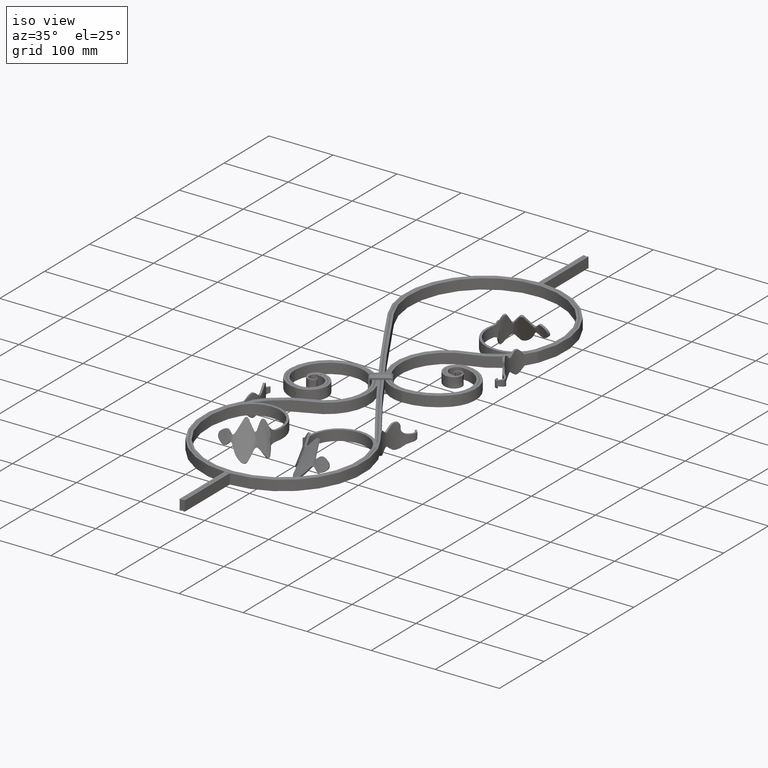
[diagram: clean part render]
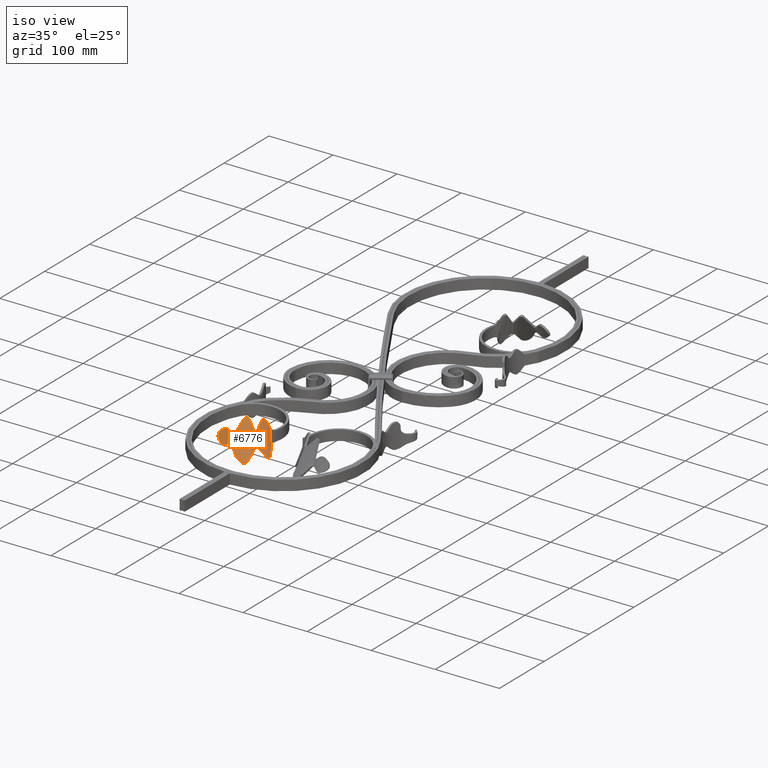
[diagram: same view with one face highlighted and labeled with its STEP entity id]
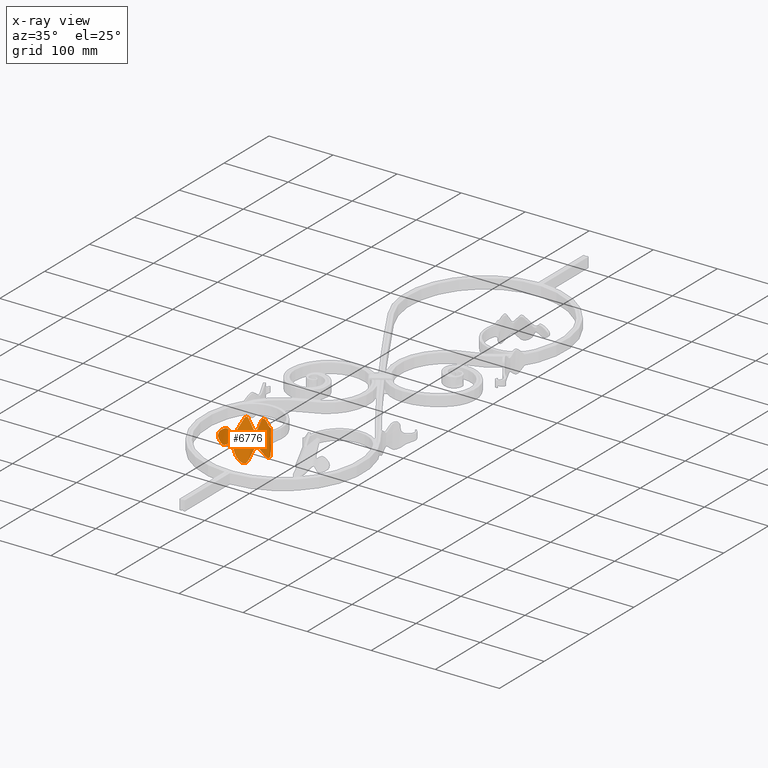
[diagram: x-ray of the same camera — body ghosted, the highlighted face saturated]
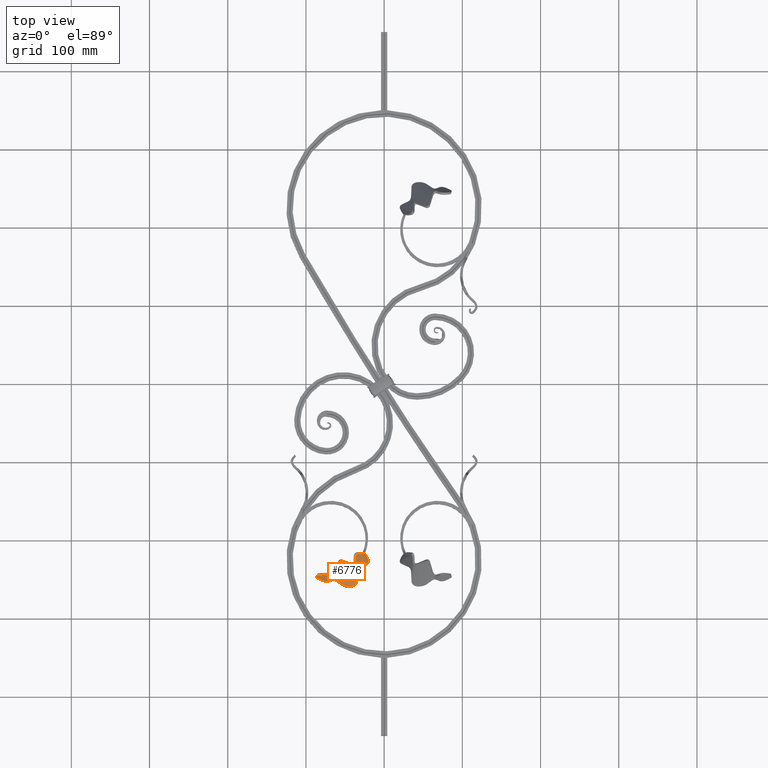
[diagram: same view with one face highlighted and labeled with its STEP entity id]
A machine part, iso view. The second image highlights one B-rep face of the part: STEP entity #6776.
The next image is the same camera in x-ray: the body ghosted, the highlighted face saturated — about 0% of this face is hidden behind the body in this view.
A second angle (top view) of the same face is appended — the face is thin or edge-on in the first view.
In plain terms, the highlighted face is a freeform B-spline surface patch.
Its self-contained STEP definition (entity closure, byte-faithful):
#78 = CARTESIAN_POINT ( 'NONE',  ( -31.70719285318793368, -215.0983763876049011, 26.22190851606310957 ) ) ;
#226 = VERTEX_POINT ( 'NONE', #8088 ) ;
#414 = CARTESIAN_POINT ( 'NONE',  ( -73.63405529800409965, -239.9980409116379860, 23.44558443169835371 ) ) ;
#418 = CARTESIAN_POINT ( 'NONE',  ( -55.49942883577791264, -259.1300241852245563, -16.82412671734019582 ) ) ;
#519 = CARTESIAN_POINT ( 'NONE',  ( -16.19230652051385633, -230.7987754669394178, -33.36520945733495580 ) ) ;
#769 = CARTESIAN_POINT ( 'NONE',  ( -40.27070720235761314, -231.8570342741394086, 4.458380182484407150 ) ) ;
#935 = CARTESIAN_POINT ( 'NONE',  ( -26.82610194027254735, -218.0839697591759148, 6.120196970770777511 ) ) ;
#974 = VERTEX_POINT ( 'NONE', #4609 ) ;
#1028 = CARTESIAN_POINT ( 'NONE',  ( -62.80383985795849355, -247.1715449112271585, 0.5707683171801293254 ) ) ;
#1647 = B_SPLINE_CURVE_WITH_KNOTS ( 'NONE', 3,
 ( #17542, #7767, #9753, #17289, #11478, #13447, #23406, #1698, #3658, #19176, #7422, #19662, #10093, #12065 ),
 .UNSPECIFIED., .F., .F.,
 ( 4, 2, 2, 2, 2, 2, 4 ),
 ( 7.152448122690996019E-18, 0.001340536488547645292, 0.002010804732821464252, 0.002681072977095283211, 0.003351341221369102171, 0.004021609465642921565, 0.005362145954190553412 ),
 .UNSPECIFIED. ) ;
#1698 = CARTESIAN_POINT ( 'NONE',  ( -27.45580850525448113, -216.6145653137118359, 14.09804083391916940 ) ) ;
#1910 = CARTESIAN_POINT ( 'NONE',  ( -83.71537529404966449, -244.9293315853853414, 5.160881433700161836 ) ) ;
#2043 = CARTESIAN_POINT ( 'NONE',  ( -63.06846676040483857, -248.9220805546081010, -0.5702339803316490707 ) ) ;
#2061 = ORIENTED_EDGE ( 'NONE', *, *, #14287, .F. ) ;
#2113 = CARTESIAN_POINT ( 'NONE',  ( -56.22038085678877906, -221.7615966360299353, 32.16677762089288706 ) ) ;
#2291 = CARTESIAN_POINT ( 'NONE',  ( -24.86369256807507355, -217.0408718552029654, 8.000000000000000000 ) ) ;
#2383 = CARTESIAN_POINT ( 'NONE',  ( -54.51407750647761929, -265.2694307641325508, -25.41894186991523341 ) ) ;
#2461 = CARTESIAN_POINT ( 'NONE',  ( -29.59699701182409726, -259.3112436813754584, -32.16589865442728069 ) ) ;
#2486 = VERTEX_POINT ( 'NONE', #19819 ) ;
#2514 = B_SPLINE_SURFACE_WITH_KNOTS ( 'NONE', 3, 3, ( 
 ( #6590, #24045, #18082, #16194, #22242, #2383, #20286, #16264, #12268, #4520 ),
 ( #22067, #10452, #10533, #18261, #21998, #4677, #24203, #22320, #8395, #6504 ),
 ( #16113, #23950, #12528, #769, #14482, #12193, #6341, #4344, #20038, #8308 ),
 ( #12360, #10300, #519, #14242, #2461, #4438, #1028, #4846, #24387, #18838 ),
 ( #14576, #8898, #2800, #20801, #14927, #4772, #10971, #6845, #5020, #9082 ),
 ( #6757, #935, #20463, #8726, #22405, #12685, #16788, #18598, #20531, #12601 ),
 ( #7100, #8816, #7019, #24544, #24631, #24463, #22488, #10790, #12858, #3151 ),
 ( #16870, #12778, #19092, #9691, #4163, #23583, #21807, #15833, #13968, #11996 ),
 ( #15910, #78, #19767, #8036, #10185, #23840, #17738, #7949, #21721, #15737 ),
 ( #9848, #19929, #12172, #20018, #14133, #8284, #23510, #414, #10108, #5969 ) ),
 .UNSPECIFIED., .F., .F., .F.,
 ( 4, 3, 3, 4 ),
 ( 4, 1, 1, 1, 1, 1, 1, 4 ),
 ( -0.2554340199973100245, 0.000000000000000000, 1.000000000000000000, 1.319260244043976238 ),
 ( 0.000000000000000000, 0.1555450868424311239, 0.3171069245021586047, 0.5135773434917300095, 0.6410318024686509908, 0.7888780637861357858, 0.8531032969698880697, 1.000000000000000000 ),
 .UNSPECIFIED. ) ;
#2531 = CARTESIAN_POINT ( 'NONE',  ( -18.02914424635629942, -230.9209306751669999, -30.46621451763531141 ) ) ;
#2800 = CARTESIAN_POINT ( 'NONE',  ( -23.83798526999437328, -226.0664216859851763, -11.11728648388969987 ) ) ;
#2884 = CARTESIAN_POINT ( 'NONE',  ( -22.30700188055484290, -220.3700991353471750, -14.92270707561661602 ) ) ;
#2978 = CARTESIAN_POINT ( 'NONE',  ( -24.22520478817327216, -217.6903872976182868, -12.25722961142075462 ) ) ;
#3151 = CARTESIAN_POINT ( 'NONE',  ( -86.08579796155625274, -245.1186472696008991, 3.288924172750681052 ) ) ;
#3218 = LINE ( 'NONE', #2291, #18252 ) ;
#3242 = CARTESIAN_POINT ( 'NONE',  ( -85.35948116762969562, -248.0026026872737646, -4.069819391450387513 ) ) ;
#3403 = CARTESIAN_POINT ( 'NONE',  ( -86.31581581018708960, -247.0121106981796117, -1.954105702200817252 ) ) ;
#3658 = CARTESIAN_POINT ( 'NONE',  ( -27.62301038721107105, -216.6165808582597379, 14.25219202550009001 ) ) ;
#3800 = LINE ( 'NONE', #12375, #23679 ) ;
#4003 = CARTESIAN_POINT ( 'NONE',  ( -28.96031277660755165, -216.6558966036715788, 16.04433143409746876 ) ) ;
#4118 = ORIENTED_EDGE ( 'NONE', *, *, #22007, .F. ) ;
#4163 = CARTESIAN_POINT ( 'NONE',  ( -59.05364353132873845, -217.7655601428758416, 39.01306626344650397 ) ) ;
#4344 = CARTESIAN_POINT ( 'NONE',  ( -73.67706904697962500, -255.4985419003751304, -16.74664961704536736 ) ) ;
#4438 = CARTESIAN_POINT ( 'NONE',  ( -55.49942883577791264, -259.1300241852245563, -16.82412671734019582 ) ) ;
#4520 = CARTESIAN_POINT ( 'NONE',  ( -86.99410267250453899, -247.9838054272812258, -4.969130418574744468 ) ) ;
#4609 = CARTESIAN_POINT ( 'NONE',  ( -28.96031277660755165, -216.6558966036715788, 16.04433143409746876 ) ) ;
#4677 = CARTESIAN_POINT ( 'NONE',  ( -54.84252794957771471, -263.2229619044965716, -22.55400348572355540 ) ) ;
#4772 = CARTESIAN_POINT ( 'NONE',  ( -56.78528121794516181, -251.1182923898373929, -5.608164238176891914 ) ) ;
#4840 = CARTESIAN_POINT ( 'NONE',  ( -22.45713150412785808, -220.1258723438197933, -14.54110083507380757 ) ) ;
#4846 = CARTESIAN_POINT ( 'NONE',  ( -73.67446125804353585, -254.5587950532616901, -14.30992029757382156 ) ) ;
#4966 = CARTESIAN_POINT ( 'NONE',  ( -86.25202142335294297, -245.8086255149748638, 1.330931660128964911 ) ) ;
#5020 = CARTESIAN_POINT ( 'NONE',  ( -81.66810063448458834, -248.1507491947870392, -2.333048367399839229 ) ) ;
#5103 = CARTESIAN_POINT ( 'NONE',  ( -86.08879510550646330, -247.3381256897638423, -2.702385480939154760 ) ) ;
#5228 = CARTESIAN_POINT ( 'NONE',  ( -85.03605826670823831, -245.1506349547015873, 3.815442737059309586 ) ) ;
#5319 = CARTESIAN_POINT ( 'NONE',  ( -84.89149609003689534, -245.1128697859034276, 4.000663062668393444 ) ) ;
#5910 = VERTEX_POINT ( 'NONE', #21361 ) ;
#5969 = CARTESIAN_POINT ( 'NONE',  ( -85.85481363337608229, -244.3900298527751431, 5.388969640819710527 ) ) ;
#5999 = EDGE_CURVE ( 'NONE', #9450, #974, #15965, .T. ) ;
#6297 = VERTEX_POINT ( 'NONE', #15477 ) ;
#6341 = CARTESIAN_POINT ( 'NONE',  ( -62.78130828679471875, -247.0224961257147243, 0.6679185850733289076 ) ) ;
#6504 = CARTESIAN_POINT ( 'NONE',  ( -86.93250062359705055, -247.7894878036581474, -4.409061669966722441 ) ) ;
#6576 = CARTESIAN_POINT ( 'NONE',  ( -23.09691630974042553, -219.1308035967650483, -13.35945638097156696 ) ) ;
#6590 = CARTESIAN_POINT ( 'NONE',  ( -24.86369256807507355, -217.0408718552029939, -12.08694431995696306 ) ) ;
#6749 = CARTESIAN_POINT ( 'NONE',  ( -22.99340594787186376, -219.2848648733912285, -13.51498011721907666 ) ) ;
#6757 = CARTESIAN_POINT ( 'NONE',  ( -24.86369256807507355, -217.0408718552029939, 2.666666666666666963 ) ) ;
#6776 = ADVANCED_FACE ( 'NONE', ( #20192 ), #2514, .T. ) ;
#6812 = VERTEX_POINT ( 'NONE', #22127 ) ;
#6845 = CARTESIAN_POINT ( 'NONE',  ( -73.66425201130296330, -250.8797751360111761, -4.770355757591208778 ) ) ;
#7019 = CARTESIAN_POINT ( 'NONE',  ( -39.12934276895542496, -216.6017141240764374, 33.37855946300080490 ) ) ;
#7100 = CARTESIAN_POINT ( 'NONE',  ( -24.86369256807507355, -217.0408718552029939, 8.000000000000001776 ) ) ;
#7338 = CARTESIAN_POINT ( 'NONE',  ( -85.77027580256199712, -247.6680080879617663, -3.407219290587698346 ) ) ;
#7422 = CARTESIAN_POINT ( 'NONE',  ( -28.08295851748869865, -216.6311059750503318, 14.74583334851818606 ) ) ;
#7767 = CARTESIAN_POINT ( 'NONE',  ( -25.29163761276585376, -216.9036168622703258, 13.01496439878056322 ) ) ;
#7835 = ORIENTED_EDGE ( 'NONE', *, *, #25125, .T. ) ;
#7949 = CARTESIAN_POINT ( 'NONE',  ( -73.63731470461000583, -241.1726057082620400, 20.39998072859024347 ) ) ;
#8036 = CARTESIAN_POINT ( 'NONE',  ( -32.27978599277778926, -239.6037680954293023, -5.436413893085900284 ) ) ;
#8088 = CARTESIAN_POINT ( 'NONE',  ( -86.43227486822999595, -246.2115747020345680, 0.1388522030059437251 ) ) ;
#8284 = CARTESIAN_POINT ( 'NONE',  ( -60.58855061828528221, -227.4213464544322392, 27.56619347500699035 ) ) ;
#8308 = CARTESIAN_POINT ( 'NONE',  ( -86.87089857468954790, -247.5951701800350406, -3.848992921358700414 ) ) ;
#8395 = CARTESIAN_POINT ( 'NONE',  ( -81.97434957190272087, -250.6854990446162788, -9.392081826804627553 ) ) ;
#8461 = CARTESIAN_POINT ( 'NONE',  ( -39.74652205232399638, -232.3652013207015727, 3.809305566301667945 ) ) ;
#8590 = B_SPLINE_CURVE_WITH_KNOTS ( 'NONE', 3,
 ( #16338, #2884, #4840, #24191, #18585, #6749, #6576, #10693, #20614, #2978, #20451, #12592 ),
 .UNSPECIFIED., .F., .F.,
 ( 4, 2, 2, 2, 2, 4 ),
 ( 1.097135458930219133E-17, 0.001428510768075019841, 0.002142766152112545591, 0.002857021536150071775, 0.004285532304225069498, 0.005714043072300068089 ),
 .UNSPECIFIED. ) ;
#8726 = CARTESIAN_POINT ( 'NONE',  ( -35.64225160284249938, -236.3440530536660162, -1.272825750345777163 ) ) ;
#8816 = CARTESIAN_POINT ( 'NONE',  ( -29.80506433250439713, -216.2618421792791139, 18.38840581614794445 ) ) ;
#8898 = CARTESIAN_POINT ( 'NONE',  ( -23.84713954804069758, -219.9060973390726872, -6.148011874606392979 ) ) ;
#9082 = CARTESIAN_POINT ( 'NONE',  ( -86.56813033770679056, -246.6401174608082556, -1.096308057583558648 ) ) ;
#9277 = CARTESIAN_POINT ( 'NONE',  ( -86.35076319606729101, -245.9544541238539637, 0.8799337260193563770 ) ) ;
#9328 = CARTESIAN_POINT ( 'NONE',  ( -84.08743910320809789, -248.7602203723032801, -5.367876984888791725 ) ) ;
#9450 = VERTEX_POINT ( 'NONE', #1910 ) ;
#9691 = CARTESIAN_POINT ( 'NONE',  ( -32.93495118543976474, -238.9686235077887773, -4.625152650877700999 ) ) ;
#9753 = CARTESIAN_POINT ( 'NONE',  ( -25.71443979839179406, -216.7955439894616632, 13.11359491987594694 ) ) ;
#9848 = CARTESIAN_POINT ( 'NONE',  ( -24.86369256807507355, -217.0408718552029939, 13.10816390470362336 ) ) ;
#10093 = CARTESIAN_POINT ( 'NONE',  ( -28.74162393052026943, -216.6585954804654079, 15.64920224239592450 ) ) ;
#10108 = CARTESIAN_POINT ( 'NONE',  ( -81.06856633873331930, -243.1885459658236925, 11.48620824602116386 ) ) ;
#10124 = CARTESIAN_POINT ( 'NONE',  ( -72.94459957085719282, -243.8788013790196771, 13.32498644842095814 ) ) ;
#10185 = CARTESIAN_POINT ( 'NONE',  ( -61.88690620586870494, -213.7695236497217763, 45.85935490600012088 ) ) ;
#10300 = CARTESIAN_POINT ( 'NONE',  ( -20.86817715580884780, -221.7282249189694880, -18.41622071998356347 ) ) ;
#10452 = CARTESIAN_POINT ( 'NONE',  ( -19.34632047727167503, -222.6590916643314984, -24.68365652706605573 ) ) ;
#10533 = CARTESIAN_POINT ( 'NONE',  ( -12.28637360333823025, -233.2163837675766160, -44.73096226073021597 ) ) ;
#10559 = EDGE_LOOP ( 'NONE', ( #24907, #7835, #2061, #24650, #4118, #19126, #16488, #18291 ) ) ;
#10693 = CARTESIAN_POINT ( 'NONE',  ( -23.42573819275884262, -218.6627598651877520, -12.92621396886414331 ) ) ;
#10790 = CARTESIAN_POINT ( 'NONE',  ( -73.64383351782181819, -243.5217353015101764, 14.30877332237401944 ) ) ;
#10961 = CARTESIAN_POINT ( 'NONE',  ( -86.49104249825062141, -246.3969514291742655, -0.3954467949664965398 ) ) ;
#10971 = CARTESIAN_POINT ( 'NONE',  ( -62.89204882544062514, -247.7550567923541678, 0.1904342180095381365 ) ) ;
#11086 = CARTESIAN_POINT ( 'NONE',  ( -83.71537529404966449, -244.9293315853853414, 5.160881433700161836 ) ) ;
#11127 = CARTESIAN_POINT ( 'NONE',  ( -86.37006962902746920, -246.9049601592152783, -1.696295393975089105 ) ) ;
#11478 = CARTESIAN_POINT ( 'NONE',  ( -26.53785144572620425, -216.6636754067172888, 13.46194170935428147 ) ) ;
#11675 = CARTESIAN_POINT ( 'NONE',  ( -59.35698598227958200, -235.0948287990628387, 16.82376072014973545 ) ) ;
#11996 = CARTESIAN_POINT ( 'NONE',  ( -86.00880318549619119, -244.8757747973256471, 3.988939328773690729 ) ) ;
#12065 = CARTESIAN_POINT ( 'NONE',  ( -28.96031277660755165, -216.6558966036715788, 16.04433143409746876 ) ) ;
#12172 = CARTESIAN_POINT ( 'NONE',  ( -46.45222655927841515, -212.0691568550467139, 54.68719141692195507 ) ) ;
#12174 = CARTESIAN_POINT ( 'NONE',  ( -22.16573235699161160, -220.5850585180250505, -15.32971714365298155 ) ) ;
#12193 = CARTESIAN_POINT ( 'NONE',  ( -55.17097839267781723, -261.1764930448605924, -19.68906510153187384 ) ) ;
#12268 = CARTESIAN_POINT ( 'NONE',  ( -82.02612536908279139, -251.1140350429234616, -10.58551318288633070 ) ) ;
#12360 = CARTESIAN_POINT ( 'NONE',  ( -24.86369256807507355, -217.0408718552029939, -8.000000000000001776 ) ) ;
#12375 = CARTESIAN_POINT ( 'NONE',  ( -86.80929652578204525, -247.4008525564119623, -3.288924172750678387 ) ) ;
#12510 = CARTESIAN_POINT ( 'NONE',  ( -84.08743910320809789, -248.7602203723032801, -5.367876984888791725 ) ) ;
#12528 = CARTESIAN_POINT ( 'NONE',  ( -14.23934006192604329, -232.0075796172580169, -39.04808585903258233 ) ) ;
#12592 = CARTESIAN_POINT ( 'NONE',  ( -24.86369256807507355, -217.0408718552029654, -11.93756620795300272 ) ) ;
#12601 = CARTESIAN_POINT ( 'NONE',  ( -86.32696414963152165, -245.8793823652045774, 1.096308057583561313 ) ) ;
#12685 = CARTESIAN_POINT ( 'NONE',  ( -58.07113360011238257, -243.1065605944500589, 5.607798240986415550 ) ) ;
#12778 = CARTESIAN_POINT ( 'NONE',  ( -30.75612859284616363, -215.6801092834419933, 22.30515716610552701 ) ) ;
#12858 = CARTESIAN_POINT ( 'NONE',  ( -81.26270594836859118, -244.7953934883573481, 7.011293127082929288 ) ) ;
#13447 = CARTESIAN_POINT ( 'NONE',  ( -26.92311362414639575, -216.6297055631538910, 13.68933406725935775 ) ) ;
#13646 = CARTESIAN_POINT ( 'NONE',  ( -32.17601127168398989, -216.6162111135371333, 21.85448759820419795 ) ) ;
#13824 = VERTEX_POINT ( 'NONE', #23799 ) ;
#13968 = CARTESIAN_POINT ( 'NONE',  ( -81.19799274515683862, -244.2597776475128057, 8.502931500062340220 ) ) ;
#14133 = CARTESIAN_POINT ( 'NONE',  ( -64.72016888040866434, -209.7734871565676826, 52.70564354855373068 ) ) ;
#14197 = B_SPLINE_CURVE_WITH_KNOTS ( 'NONE', 3,
 ( #20713, #10961, #15161, #11127, #3403, #19081, #5103, #24788, #7338, #16858, #3242, #16777, #21059, #9328 ),
 .UNSPECIFIED., .F., .F.,
 ( 4, 2, 2, 2, 2, 2, 4 ),
 ( 0.000000000000000000, 0.001681573103156911624, 0.002522359654735364509, 0.003363146206313817176, 0.004203932757892270278, 0.005044719309470722945, 0.006726292412627574505 ),
 .UNSPECIFIED. ) ;
#14242 = CARTESIAN_POINT ( 'NONE',  ( -39.74652205232399638, -232.3652013207015727, 3.809305566301667945 ) ) ;
#14287 = EDGE_CURVE ( 'NONE', #6297, #5910, #23550, .T. ) ;
#14307 = CARTESIAN_POINT ( 'NONE',  ( -72.87652045741991458, -254.0165456200603842, -13.21762684441439539 ) ) ;
#14482 = CARTESIAN_POINT ( 'NONE',  ( -27.33015769134051354, -262.5083961127997441, -37.64348336049081922 ) ) ;
#14576 = CARTESIAN_POINT ( 'NONE',  ( -24.86369256807507355, -217.0408718552029939, -2.666666666666666963 ) ) ;
#14927 = CARTESIAN_POINT ( 'NONE',  ( -38.47145829347896040, -246.7946946662603125, -10.72167322932055811 ) ) ;
#15034 = CARTESIAN_POINT ( 'NONE',  ( -85.30752509539966866, -245.2350960032183025, 3.430383336202944999 ) ) ;
#15161 = CARTESIAN_POINT ( 'NONE',  ( -86.48190155262531675, -246.5936691026636254, -0.9208824222913567503 ) ) ;
#15477 = CARTESIAN_POINT ( 'NONE',  ( -22.16573235699161160, -220.5850585180250505, -15.32971714365298155 ) ) ;
#15737 = CARTESIAN_POINT ( 'NONE',  ( -85.93180840943612964, -244.6329023250503951, 4.688954484796700406 ) ) ;
#15757 = CARTESIAN_POINT ( 'NONE',  ( -33.59011637810174022, -238.3334789201482522, -3.813891408669500382 ) ) ;
#15833 = CARTESIAN_POINT ( 'NONE',  ( -73.64057411121591201, -242.3471705048860940, 17.35437702548212968 ) ) ;
#15879 = CARTESIAN_POINT ( 'NONE',  ( -79.56733759377345905, -244.5652593624797930, 8.449252729842594789 ) ) ;
#15910 = CARTESIAN_POINT ( 'NONE',  ( -24.86369256807507355, -217.0408718552029939, 11.40544260313575009 ) ) ;
#15965 = B_SPLINE_CURVE_WITH_KNOTS ( 'NONE', 3,
 ( #20152, #15879, #10124, #2043, #11675, #2113, #15757, #21662, #13646, #4003 ),
 .UNSPECIFIED., .F., .F.,
 ( 4, 1, 1, 1, 1, 1, 1, 4 ),
 ( 0.02373466144033113331, 0.1468967030301119303, 0.2111219362138642142, 0.3589681975313490092, 0.4864226565082699905, 0.6828930754978413953, 0.8444549131575689316, 0.9553958864027051190 ),
 .UNSPECIFIED. ) ;
#16113 = CARTESIAN_POINT ( 'NONE',  ( -24.86369256807507355, -217.0408718552029939, -9.362314773318988870 ) ) ;
#16194 = CARTESIAN_POINT ( 'NONE',  ( -41.31907750242483957, -230.8407001810150518, 5.756529414849886450 ) ) ;
#16264 = CARTESIAN_POINT ( 'NONE',  ( -73.68228462485178909, -257.3780355946020109, -21.62010825598846608 ) ) ;
#16338 = CARTESIAN_POINT ( 'NONE',  ( -22.16573235699161160, -220.5850585180250505, -15.32971714365298155 ) ) ;
#16421 = CARTESIAN_POINT ( 'NONE',  ( -79.85296170251891112, -250.8678326033459314, -8.578465055430816832 ) ) ;
#16488 = ORIENTED_EDGE ( 'NONE', *, *, #5999, .F. ) ;
#16777 = CARTESIAN_POINT ( 'NONE',  ( -84.87884376131471242, -248.3347101617919748, -4.683973953364574783 ) ) ;
#16788 = CARTESIAN_POINT ( 'NONE',  ( -62.98025779292271409, -248.3385686734811202, -0.1898998811610534132 ) ) ;
#16821 = CARTESIAN_POINT ( 'NONE',  ( -85.77915567567239918, -245.4325619367511138, 2.622632599741602899 ) ) ;
#16858 = CARTESIAN_POINT ( 'NONE',  ( -85.50728930326243926, -247.8901707141074553, -3.853015976596027681 ) ) ;
#16867 = EDGE_CURVE ( 'NONE', #13824, #974, #1647, .T. ) ;
#16870 = CARTESIAN_POINT ( 'NONE',  ( -24.86369256807507355, -217.0408718552029939, 9.702721301567875045 ) ) ;
#16992 = CARTESIAN_POINT ( 'NONE',  ( -84.09148574704012447, -244.9623427049972406, 4.862718565578059149 ) ) ;
#17289 = CARTESIAN_POINT ( 'NONE',  ( -26.33354048313668372, -216.6896007918511486, 13.36166624920005042 ) ) ;
#17542 = CARTESIAN_POINT ( 'NONE',  ( -24.86369256807507355, -217.0408718552029654, 12.95878579269970032 ) ) ;
#17738 = CARTESIAN_POINT ( 'NONE',  ( -63.12478999337525920, -249.2946648457504466, -0.8130850949705439312 ) ) ;
#18082 = CARTESIAN_POINT ( 'NONE',  ( -10.33340714475041544, -234.4251879178952152, -50.41383866242784251 ) ) ;
#18252 = VECTOR ( 'NONE', #23778, 1000.000000000000000 ) ;
#18261 = CARTESIAN_POINT ( 'NONE',  ( -40.79489235239122991, -231.3488672275772160, 5.107454798667147244 ) ) ;
#18291 = ORIENTED_EDGE ( 'NONE', *, *, #18399, .T. ) ;
#18399 = EDGE_CURVE ( 'NONE', #9450, #2486, #23789, .T. ) ;
#18585 = CARTESIAN_POINT ( 'NONE',  ( -22.80080862981600376, -219.5796579904734358, -13.84007444151527721 ) ) ;
#18598 = CARTESIAN_POINT ( 'NONE',  ( -73.65404276456241917, -247.2007552187606905, 4.769208782391405776 ) ) ;
#18838 = CARTESIAN_POINT ( 'NONE',  ( -86.80929652578204525, -247.4008525564119623, -3.288924172750678387 ) ) ;
#18963 = CARTESIAN_POINT ( 'NONE',  ( -86.40049176167713085, -246.1113180085276895, 0.4278153954586477181 ) ) ;
#19081 = CARTESIAN_POINT ( 'NONE',  ( -86.17485432306652626, -247.2290329745873123, -2.457881868193714237 ) ) ;
#19092 = CARTESIAN_POINT ( 'NONE',  ( -41.57030403239642169, -215.0908617010665296, 40.48143678097452636 ) ) ;
#19126 = ORIENTED_EDGE ( 'NONE', *, *, #16867, .T. ) ;
#19176 = CARTESIAN_POINT ( 'NONE',  ( -27.93648561172438249, -216.6248936768199655, 14.57619812329249243 ) ) ;
#19662 = CARTESIAN_POINT ( 'NONE',  ( -28.49762611308733895, -216.6486904321060933, 15.27327180148457231 ) ) ;
#19767 = CARTESIAN_POINT ( 'NONE',  ( -44.01126529583741842, -213.5800092780566217, 47.58431409894824071 ) ) ;
#19819 = CARTESIAN_POINT ( 'NONE',  ( -86.40049176167713085, -246.1113180085276895, 0.4278153954586477181 ) ) ;
#19929 = CARTESIAN_POINT ( 'NONE',  ( -32.65825711352970018, -214.5166434917678089, 30.13865986602069569 ) ) ;
#20018 = CARTESIAN_POINT ( 'NONE',  ( -31.62462080011581378, -240.2389126830698274, -6.247675135294099569 ) ) ;
#20038 = CARTESIAN_POINT ( 'NONE',  ( -81.92257377472265034, -250.2569630463091244, -8.198650470722926187 ) ) ;
#20152 = CARTESIAN_POINT ( 'NONE',  ( -83.71537529404966449, -244.9293315853853414, 5.160881433700161836 ) ) ;
#20187 = CARTESIAN_POINT ( 'NONE',  ( -19.99363485482995628, -223.8901785920793372, -21.58772332812705130 ) ) ;
#20192 = FACE_OUTER_BOUND ( 'NONE', #10559, .T. ) ;
#20286 = CARTESIAN_POINT ( 'NONE',  ( -62.73624514446716915, -246.7243985546898273, 0.8622191208597282941 ) ) ;
#20451 = CARTESIAN_POINT ( 'NONE',  ( -24.53456504131206728, -217.3613793907051104, -12.08242104247919180 ) ) ;
#20463 = CARTESIAN_POINT ( 'NONE',  ( -31.48366401947489379, -221.3340679050307642, 11.13063648955555429 ) ) ;
#20531 = CARTESIAN_POINT ( 'NONE',  ( -81.46540329142658265, -246.4730713415721652, 2.339122379841545474 ) ) ;
#20614 = CARTESIAN_POINT ( 'NONE',  ( -23.67149073185826325, -218.3405100046634573, -12.67888913530499906 ) ) ;
#20713 = CARTESIAN_POINT ( 'NONE',  ( -86.43227486822999595, -246.2115747020345680, 0.1388522030059437251 ) ) ;
#20801 = CARTESIAN_POINT ( 'NONE',  ( -37.69438682758325854, -234.3546271871837234, 1.268239907977945835 ) ) ;
#20836 = CARTESIAN_POINT ( 'NONE',  ( -85.96572682089593798, -245.5478212093280490, 2.202168420678244143 ) ) ;
#21059 = CARTESIAN_POINT ( 'NONE',  ( -84.50856186330125297, -248.5506163536827273, -5.048580981663153722 ) ) ;
#21361 = CARTESIAN_POINT ( 'NONE',  ( -84.08743910320809789, -248.7602203723032801, -5.367876984888791725 ) ) ;
#21662 = CARTESIAN_POINT ( 'NONE',  ( -38.64826180557223978, -218.4891145671010122, 30.14840080303548930 ) ) ;
#21721 = CARTESIAN_POINT ( 'NONE',  ( -81.13327954194507186, -243.7241618066682634, 9.994569873041751151 ) ) ;
#21807 = CARTESIAN_POINT ( 'NONE',  ( -63.09662837689004533, -249.1083727001792738, -0.6916595376510947801 ) ) ;
#21998 = CARTESIAN_POINT ( 'NONE',  ( -25.06331837085692982, -265.7055485442240297, -43.12106806655435065 ) ) ;
#22007 = EDGE_CURVE ( 'NONE', #13824, #6812, #3218, .T. ) ;
#22067 = CARTESIAN_POINT ( 'NONE',  ( -24.86369256807507355, -217.0408718552029939, -10.72462954663797596 ) ) ;
#22127 = CARTESIAN_POINT ( 'NONE',  ( -24.86369256807507355, -217.0408718552029654, -11.93756620795300272 ) ) ;
#22218 = CARTESIAN_POINT ( 'NONE',  ( -29.59699701182409726, -259.3112436813754584, -32.16589865442728069 ) ) ;
#22242 = CARTESIAN_POINT ( 'NONE',  ( -22.79647905037334610, -268.9027009756482585, -48.59865277261788208 ) ) ;
#22320 = CARTESIAN_POINT ( 'NONE',  ( -73.67967683591571415, -256.4382887474885706, -19.18337893651691672 ) ) ;
#22405 = CARTESIAN_POINT ( 'NONE',  ( -47.34591957513387683, -234.2781456511451381, 10.72255219578616803 ) ) ;
#22488 = CARTESIAN_POINT ( 'NONE',  ( -63.06846676040483857, -248.9220805546081010, -0.5702339803316456290 ) ) ;
#22696 = CARTESIAN_POINT ( 'NONE',  ( -84.43198747027440731, -245.0123847948832747, 4.534901572408666759 ) ) ;
#22756 = EDGE_CURVE ( 'NONE', #226, #2486, #3800, .T. ) ;
#22879 = CARTESIAN_POINT ( 'NONE',  ( -85.43425321900453184, -245.2818494786279473, 3.230490033189473031 ) ) ;
#23406 = CARTESIAN_POINT ( 'NONE',  ( -27.10636549731315981, -216.6211252009304928, 13.81713937842429551 ) ) ;
#23510 = CARTESIAN_POINT ( 'NONE',  ( -63.15295160986046596, -249.4809569913216194, -0.9345106522899930823 ) ) ;
#23550 = B_SPLINE_CURVE_WITH_KNOTS ( 'NONE', 3,
 ( #12174, #20187, #2531, #8461, #22218, #418, #24183, #14307, #16421, #12510 ),
 .UNSPECIFIED., .F., .F.,
 ( 4, 1, 1, 1, 1, 1, 1, 4 ),
 ( 0.04005050554069781998, 0.1555450868424311239, 0.3171069245021586047, 0.5135773434917300095, 0.6410318024686509908, 0.7888780637861357858, 0.8531032969698880697, 0.9736505062227313045 ),
 .UNSPECIFIED. ) ;
#23583 = CARTESIAN_POINT ( 'NONE',  ( -59.76750752761481777, -232.5370013508526483, 20.40457163843547761 ) ) ;
#23679 = VECTOR ( 'NONE', #23969, 1000.000000000000227 ) ;
#23778 = DIRECTION ( 'NONE',  ( 0.000000000000000000, 0.000000000000000000, -1.000000000000000000 ) ) ;
#23789 = B_SPLINE_CURVE_WITH_KNOTS ( 'NONE', 3,
 ( #11086, #16992, #22696, #5319, #5228, #15034, #22879, #16821, #20836, #4966, #9277, #18963 ),
 .UNSPECIFIED., .F., .F.,
 ( 4, 2, 2, 2, 2, 4 ),
 ( 0.000000000000000000, 0.001422777584101279566, 0.002134166376151925421, 0.002845555168202571709, 0.004268332752303883801, 0.005691110336405198061 ),
 .UNSPECIFIED. ) ;
#23799 = CARTESIAN_POINT ( 'NONE',  ( -24.86369256807507355, -217.0408718552029654, 12.95878579269970032 ) ) ;
#23840 = CARTESIAN_POINT ( 'NONE',  ( -60.17802907295004644, -229.9791739026424295, 23.98538255672123398 ) ) ;
#23950 = CARTESIAN_POINT ( 'NONE',  ( -20.10724881654025964, -222.1936582916505074, -21.54993862352480960 ) ) ;
#23969 = DIRECTION ( 'NONE',  ( 0.1033569377465419215, 0.3260293266872935636, 0.9396926207859075397 ) ) ;
#24045 = CARTESIAN_POINT ( 'NONE',  ( -18.58539213800308687, -223.1245250370125177, -27.81737443060730186 ) ) ;
#24183 = CARTESIAN_POINT ( 'NONE',  ( -62.80383985795849355, -247.1715449112271585, 0.5707683171801293254 ) ) ;
#24191 = CARTESIAN_POINT ( 'NONE',  ( -22.71120937374900350, -219.7210398722663456, -14.01010930575575131 ) ) ;
#24203 = CARTESIAN_POINT ( 'NONE',  ( -62.75877671563094395, -246.8734473402022900, 0.7650688529665286008 ) ) ;
#24387 = CARTESIAN_POINT ( 'NONE',  ( -81.87079797754256560, -249.8284270480019700, -7.005219114641223932 ) ) ;
#24463 = CARTESIAN_POINT ( 'NONE',  ( -59.35698598227958200, -235.0948287990628387, 16.82376072014972124 ) ) ;
#24544 = CARTESIAN_POINT ( 'NONE',  ( -33.59011637810174022, -238.3334789201482522, -3.813891408669501715 ) ) ;
#24631 = CARTESIAN_POINT ( 'NONE',  ( -56.22038085678877906, -221.7615966360299353, 32.16677762089289416 ) ) ;
#24650 = ORIENTED_EDGE ( 'NONE', *, *, #25025, .T. ) ;
#24788 = CARTESIAN_POINT ( 'NONE',  ( -85.88650675416181457, -247.5576125414771411, -3.177054936199252833 ) ) ;
#24907 = ORIENTED_EDGE ( 'NONE', *, *, #22756, .F. ) ;
#25025 = EDGE_CURVE ( 'NONE', #6297, #6812, #8590, .T. ) ;
#25125 = EDGE_CURVE ( 'NONE', #226, #5910, #14197, .T. ) ;